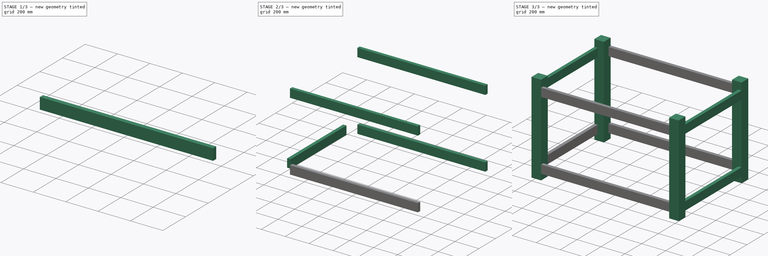
[diagram: build sequence overview — one tinted view per stage of 3, left to right]
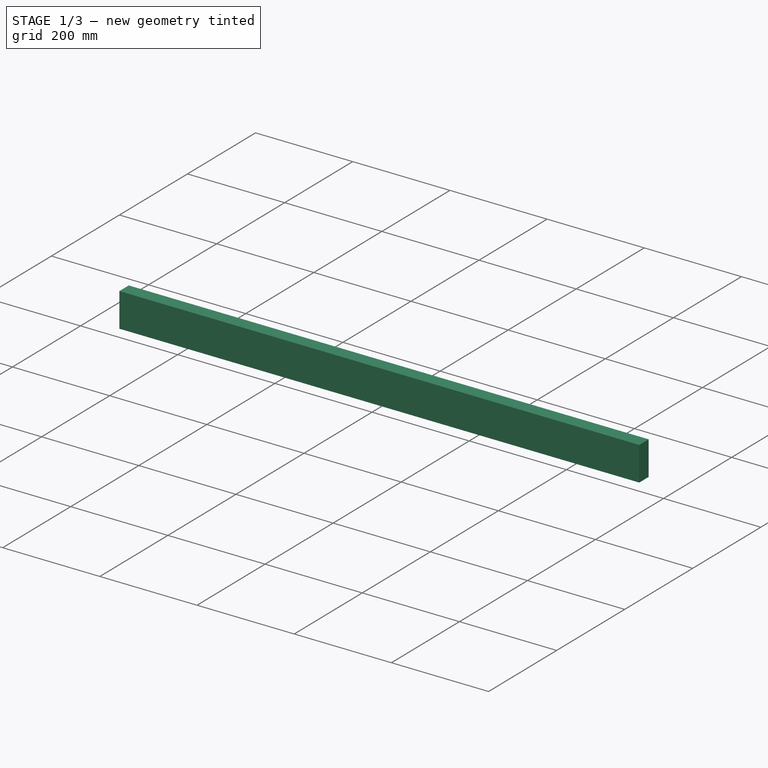
[diagram: stage 1 of 3 — iso view after this stage's code; geometry added in this stage tinted green]
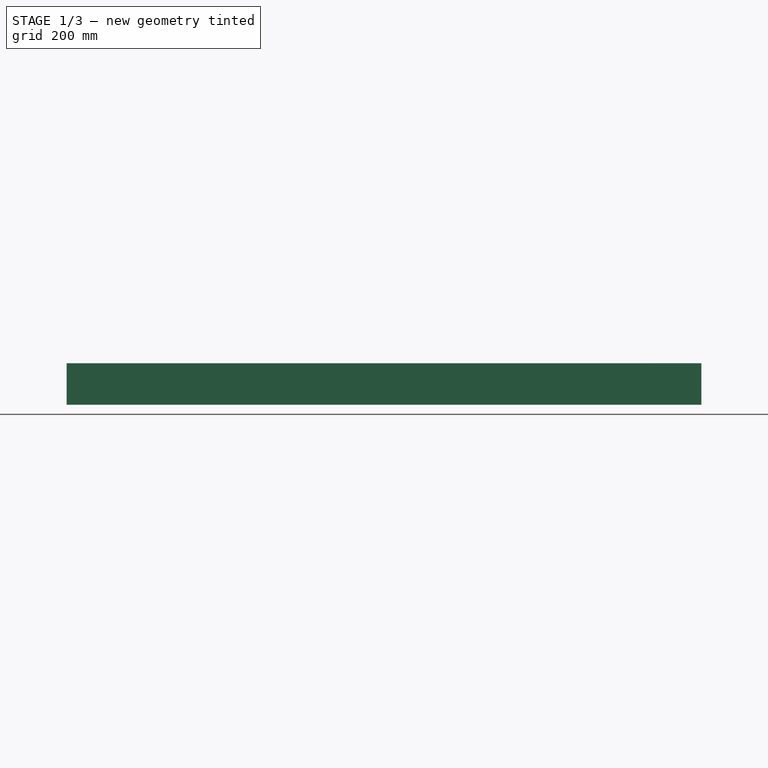
[diagram: stage 1 of 3 — front view after this stage's code; geometry added in this stage tinted green]
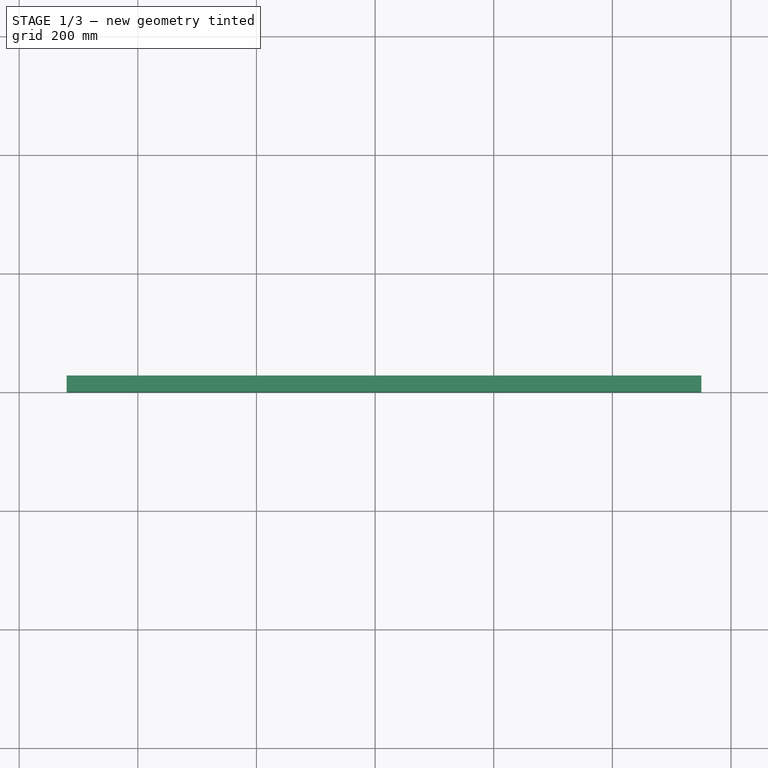
[diagram: stage 1 of 3 — top view after this stage's code; geometry added in this stage tinted green]
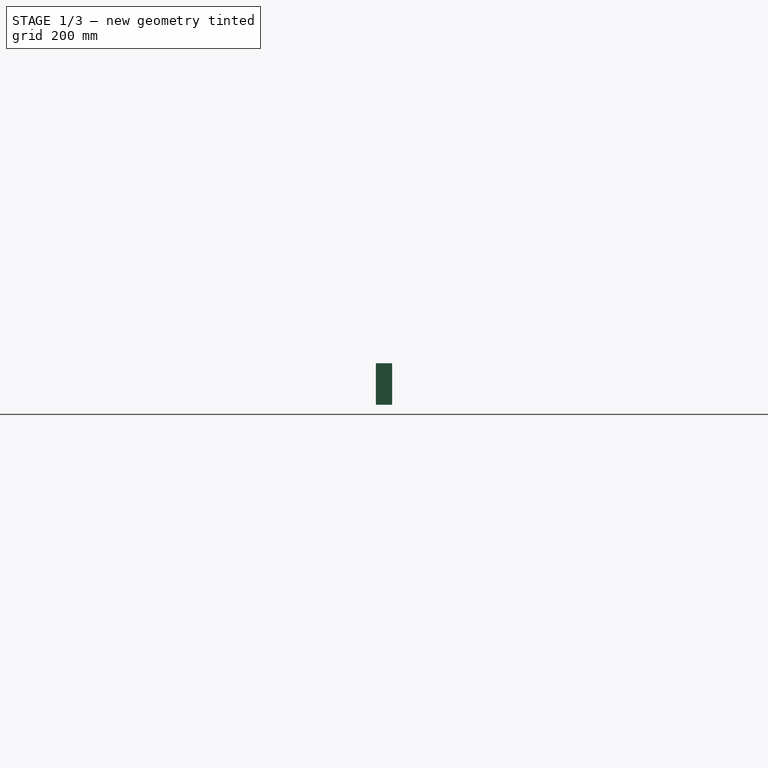
[diagram: stage 1 of 3 — right view after this stage's code; geometry added in this stage tinted green]
FCSTD DOCUMENT  (FreeCAD 0.19R)
Label: EXEMPLO-BASICO-01
License: All rights reserved
LicenseURL: http://en.wikipedia.org/wiki/All_rights_reserved
objects: Sketcher::SketchObject×3, Part::Extrusion×3, Part::FeaturePython×3, Spreadsheet::Sheet×1
note: 6 computed .brp shape members not serialized (recipe doc carries the construction recipe); baked Part::Feature solids carry a one-line shape summary decoded from their .brp

FEATURE [Spreadsheet::Sheet] Spreadsheet
  cells = B1=px; C1=py; D1=pz; E1=lx; F1=ly; G1=lz; H1=nx; I1=ny; J1=nz; K1=dx; L1=dy; M1=dz; A2=Mesa; B2(mesapx)=; C2(mesapy)=; D2(mesapz)=; E2(mesalx)=; F2(mesaly)=; G2(mesalz)=; H2(mesanx)=; I2(mesany)=; J2(mesanz)=; K2(totaldx)=1200; L2(totaldy)=750; M2(mesadz)=; A3=VigaH; B3(vigaHpx)=0; C3(vigaHpy)=0; D3(vigaHpz)=50; E3(vigaHlx)==pilardx - pilarlx; F3(vigaHly)=27.5; G3(VigaHlz)=70; H3(vigaHnx)=2; I3(vigaHny)=2; J3(vigaHnz)=2; K3(vigaHdx)=0; L3(vigaHdy)=0; M3(vigaHdz)==510 + 70; A4=VigaV; B4(vigaVpx)=0; C4(vigaVpy)=0; D4(vigaVpz)==vigaHpz; E4(vigaVlx)==vigaHly; F4(vigaVly)==pilardy - pilarlx; G4(vigaVlz)==VigaHlz; H4(vigaVnx)==vigaHnx; I4(vigaVny)==vigaHny; J4(vigaVnz)==vigaHnz; K4(vigaVdx)==vigaHdx; L4(vigaVdy)==vigaHdy; M4(vigaVdz)==vigaHdz; A5=Pilar; B5(pilarpx)=0; C5(pilarpy)=0; D5(pilarpz)=0; E5(pilarlx)=80; F5(pilarly)=80; G5(pilarlz)=760; H5(pilarnx)=2; I5(pilarny)=2; J5(pilarnz)=1; K5(pilardx)==totaldx - 50; L5(pilardy)=750; M5(pilardz)=0
FEATURE [Sketcher::SketchObject] Sketch
  expr: Constraints[9] = Spreadsheet.pilarly
  expr: Constraints[10] = Spreadsheet.pilarlx
  sketch-geometry (4):
    g0: LineSegment StartX=0 StartY=0 StartZ=0 EndX=80 EndY=0 EndZ=0
    g1: LineSegment StartX=80 StartY=0 StartZ=0 EndX=80 EndY=80 EndZ=0
    g2: LineSegment StartX=80 StartY=80 StartZ=0 EndX=0 EndY=80 EndZ=0
    g3: LineSegment StartX=0 StartY=80 StartZ=0 EndX=0 EndY=0 EndZ=0
  constraints (11):
    c: Coincident(g0,g1)
    c: Coincident(g1,g2)
    c: Coincident(g2,g3)
    c: Coincident(g3,g0)
    c: Horizontal(g0)
    c: Horizontal(g2)
    c: Vertical(g1)
    c: Vertical(g3)
    c: Coincident(g0,g-1)
    c: DistanceY(g3,g3) = 80
    c: DistanceX(g0,g0) = 80
FEATURE [Part::Extrusion] Extrude
  Base = -> Sketch
  Dir = (0,0,1)
  DirMode = 2
  FaceMakerClass = Part::FaceMakerBullseye
  LengthFwd = 760
  LengthRev = 0
  Solid = true
  Symmetric = false
  expr: .Placement.Base.x = Spreadsheet.pilarpx
  expr: .Placement.Base.y = Spreadsheet.pilarpy
  expr: .Placement.Base.z = Spreadsheet.pilarpz
  expr: LengthFwd = Spreadsheet.pilarlz
FEATURE [Sketcher::SketchObject] Sketch001
  MapMode = 5
  Placement = pos=(80,0,0) rot=(0.57735,0.57735,0.57735;2.0944rad)
  Support = -> [Extrude]
  expr: Constraints[13] = Spreadsheet.vigaHpz
  expr: Constraints[12] = Spreadsheet.VigaHlz
  expr: Constraints[11] = Spreadsheet.vigaHly
  sketch-geometry (5):
    g0: LineSegment [constr] StartX=0 StartY=0 StartZ=0 EndX=0 EndY=50 EndZ=0
    g1: LineSegment StartX=0 StartY=50 StartZ=0 EndX=27.5 EndY=50 EndZ=0
    g2: LineSegment StartX=27.5 StartY=50 StartZ=0 EndX=27.5 EndY=120 EndZ=0
    g3: LineSegment StartX=27.5 StartY=120 StartZ=0 EndX=0 EndY=120 EndZ=0
    g4: LineSegment StartX=0 StartY=120 StartZ=0 EndX=0 EndY=50 EndZ=0
  constraints (14):
    c: Coincident(g0,g-1)
    c: PointOnObject(g0,g-2)
    c: Coincident(g1,g2)
    c: Coincident(g2,g3)
    c: Coincident(g3,g4)
    c: Coincident(g4,g1)
    c: Horizontal(g1)
    c: Horizontal(g3)
    c: Vertical(g2)
    c: Vertical(g4)
    c: Coincident(g1,g0)
    c: DistanceX(g3,g3) = 27.5
    c: DistanceY(g4,g4) = 70
    c: DistanceY(g0,g0) = 50
FEATURE [Part::Extrusion] Extrude001  label="VigaH"
  Base = -> Sketch001
  Dir = (1,0,0)
  DirMode = 0
  FaceMakerClass = Part::FaceMakerBullseye
  LengthFwd = 1070
  LengthRev = 0
  Solid = true
  Symmetric = false
  expr: LengthFwd = Spreadsheet.vigaHlx
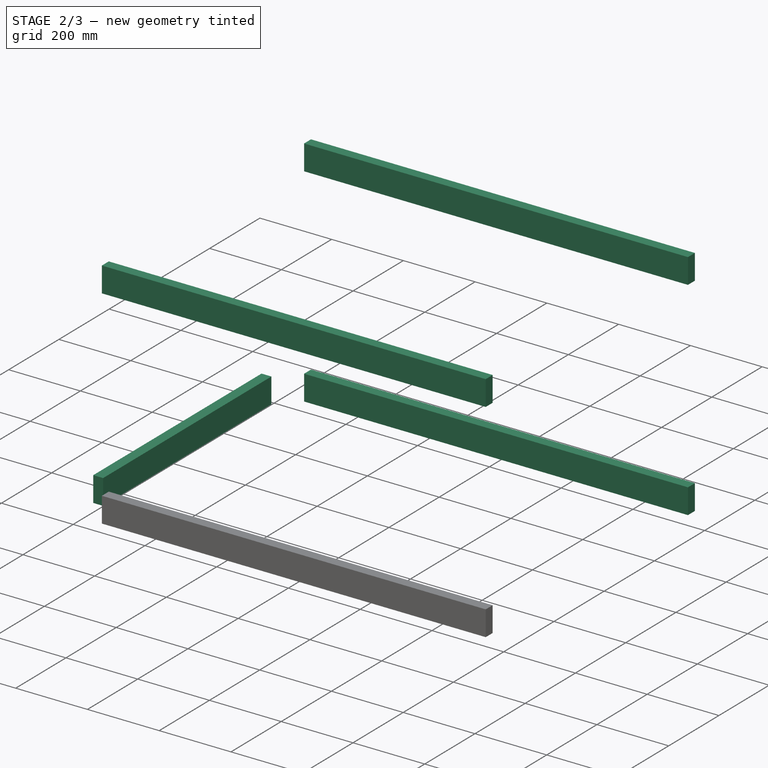
[diagram: stage 2 of 3 — iso view after this stage's code; geometry added in this stage tinted green]
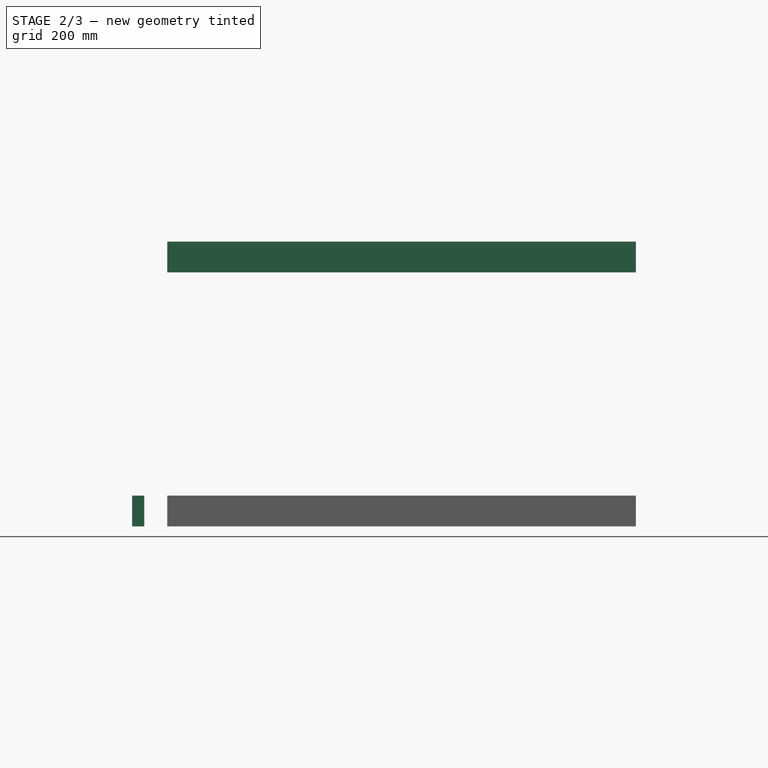
[diagram: stage 2 of 3 — front view after this stage's code; geometry added in this stage tinted green]
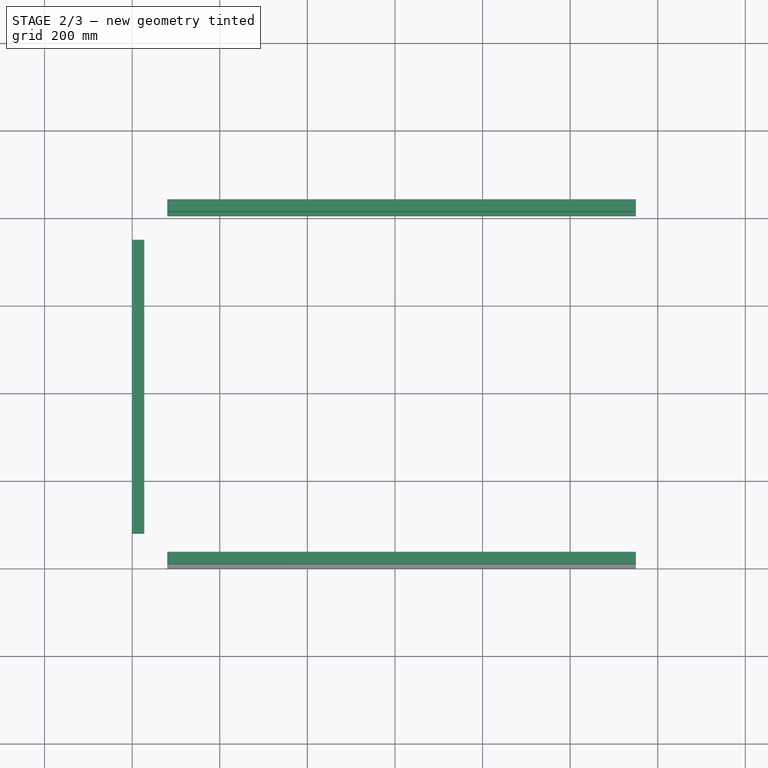
[diagram: stage 2 of 3 — top view after this stage's code; geometry added in this stage tinted green]
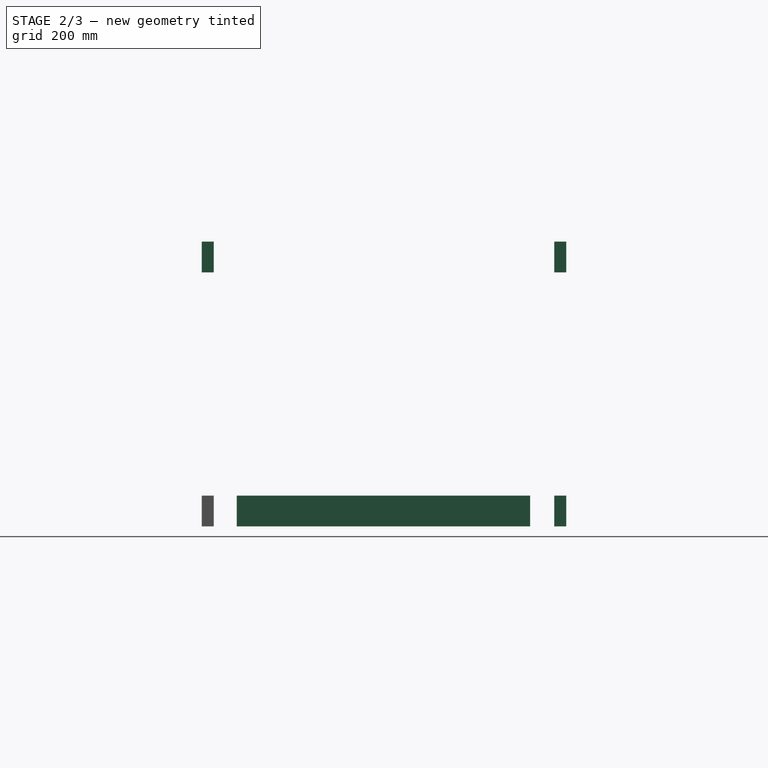
[diagram: stage 2 of 3 — right view after this stage's code; geometry added in this stage tinted green]
FEATURE [Sketcher::SketchObject] Sketch002
  MapMode = 5
  Placement = pos=(0,80,0) rot=(0,0.707107,0.707107;3.14159rad)
  Support = -> [Extrude]
  expr: Constraints[13] = Spreadsheet.vigaVpz
  expr: Constraints[12] = Spreadsheet.vigaVlz
  expr: Constraints[11] = Spreadsheet.vigaVlx
  sketch-geometry (5):
    g0: LineSegment StartX=-27.5 StartY=120 StartZ=0 EndX=0 EndY=120 EndZ=0
    g1: LineSegment StartX=0 StartY=120 StartZ=0 EndX=0 EndY=50 EndZ=0
    g2: LineSegment StartX=0 StartY=50 StartZ=0 EndX=-27.5 EndY=50 EndZ=0
    g3: LineSegment StartX=-27.5 StartY=50 StartZ=0 EndX=-27.5 EndY=120 EndZ=0
    g4: LineSegment [constr] StartX=0 StartY=50 StartZ=0 EndX=0 EndY=0 EndZ=0
  constraints (14):
    c: Coincident(g0,g1)
    c: Coincident(g1,g2)
    c: Coincident(g2,g3)
    c: Coincident(g3,g0)
    c: Horizontal(g0)
    c: Horizontal(g2)
    c: Vertical(g1)
    c: Vertical(g3)
    c: PointOnObject(g1,g-2)
    c: Coincident(g4,g1)
    c: Coincident(g4,g-1)
    c: DistanceX(g0,g0) = 27.5
    c: DistanceY(g1,g1) = 70
    c: DistanceY(g4,g4) = 50
FEATURE [Part::Extrusion] Extrude002
  Base = -> Sketch002
  Dir = (0,1,0)
  DirMode = 0
  FaceMakerClass = Part::FaceMakerBullseye
  LengthFwd = 670
  LengthRev = 0
  Solid = true
  Symmetric = false
  expr: LengthFwd = Spreadsheet.vigaVly
FEATURE [Part::FeaturePython] Array002  label="VigaH001"  # Draft array (typed FeaturePython)
  Angle = 360
  ArrayType = 0
  Axis = (0,0,1)
  Base = -> Extrude001
  Center = (0,0,0)
  Count = 4
  ExpandArray = false
  Fuse = false
  IntervalAxis = (0,0,0)
  IntervalX = (100,0,0)
  IntervalY = (0,805,0)
  IntervalZ = (0,0,580)
  NumberCircles = 3
  NumberPolar = 5
  NumberX = 1
  NumberY = 2
  NumberZ = 2
  PlacementList = 4 placements: [(0,0,0),(0,0,580),(0,805,0),(0,805,580)]
  RadialDistance = 50
  ScaleList = (4) [(1,1,1),(1,1,1),(1,1,1),(1,1,1)]
  Symmetry = 1
  TangentialDistance = 25
  expr: .IntervalY.y = Spreadsheet.vigaVly + 2 * Spreadsheet.vigaHly + Spreadsheet.pilarly
  expr: .IntervalZ.z = Spreadsheet.vigaHdz
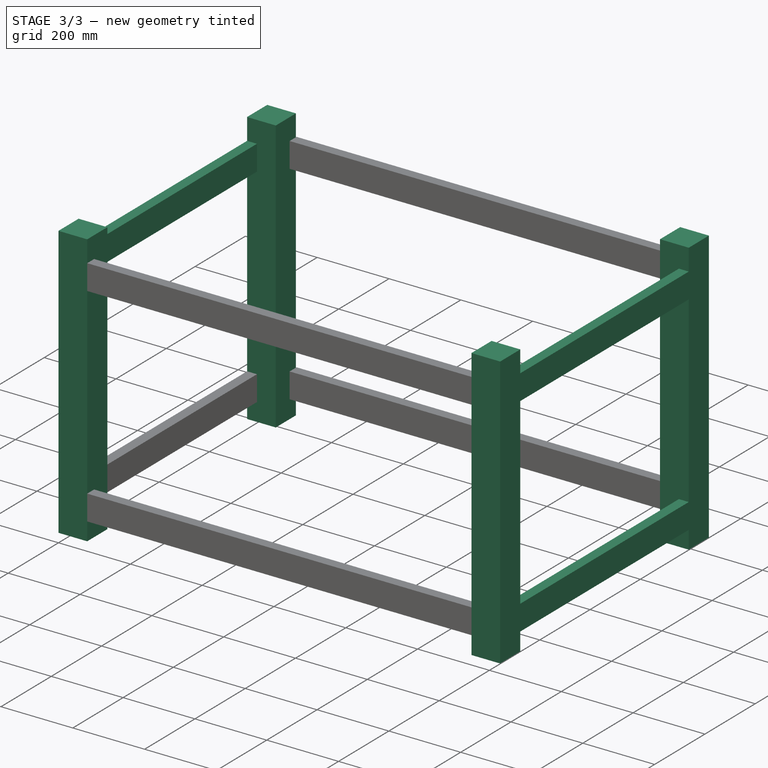
[diagram: stage 3 of 3 — iso view after this stage's code; geometry added in this stage tinted green]
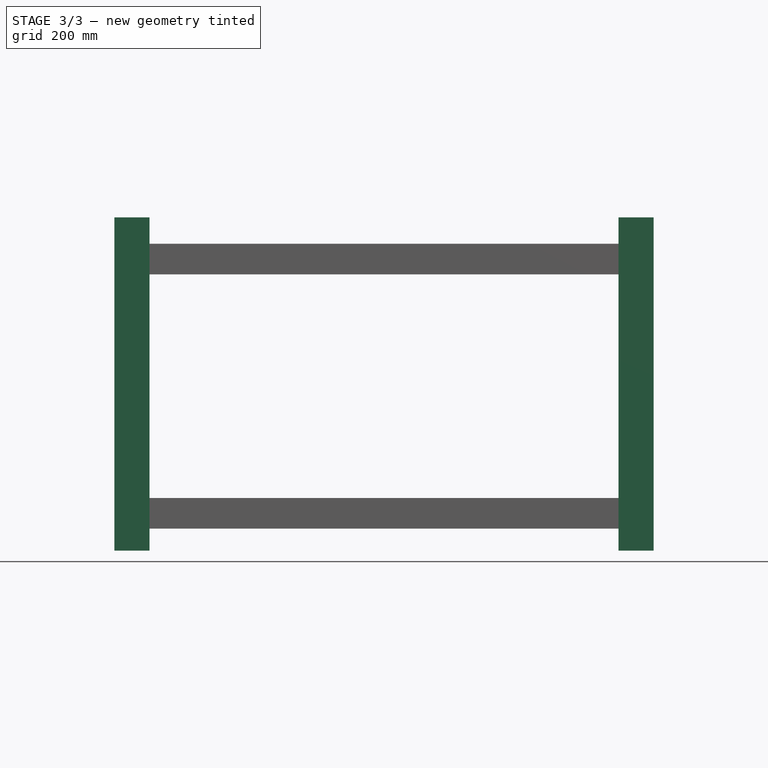
[diagram: stage 3 of 3 — front view after this stage's code; geometry added in this stage tinted green]
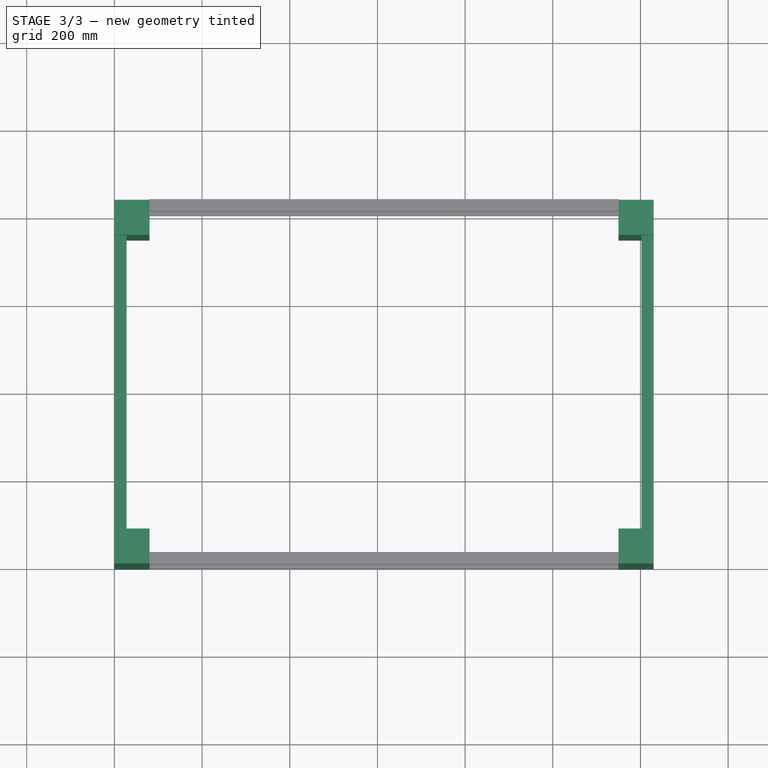
[diagram: stage 3 of 3 — top view after this stage's code; geometry added in this stage tinted green]
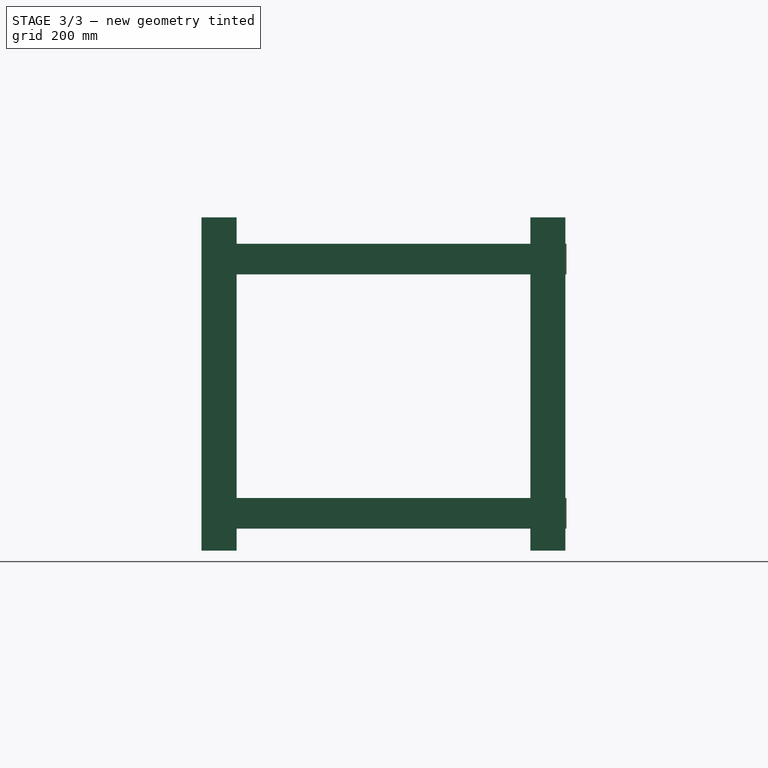
[diagram: stage 3 of 3 — right view after this stage's code; geometry added in this stage tinted green]
FEATURE [Part::FeaturePython] Array  label="Pilar"  # Draft array (typed FeaturePython)
  Angle = 360
  ArrayType = 0
  Axis = (0,0,1)
  Base = -> Extrude
  Center = (0,0,0)
  Count = 4
  ExpandArray = false
  Fuse = false
  IntervalAxis = (0,0,0)
  IntervalX = (1150,0,0)
  IntervalY = (0,750,0)
  IntervalZ = (0,0,100)
  NumberCircles = 3
  NumberPolar = 5
  NumberX = 2
  NumberY = 2
  NumberZ = 1
  PlacementList = 4 placements: [(0,0,0),(0,750,0),(1150,0,0),(1150,750,0)]
  RadialDistance = 50
  ScaleList = (4) [(1,1,1),(1,1,1),(1,1,1),(1,1,1)]
  Symmetry = 1
  TangentialDistance = 25
  expr: .IntervalX.x = Spreadsheet.pilardx
  expr: .IntervalY.y = Spreadsheet.pilardy
  expr: NumberX = Spreadsheet.pilarnx
  expr: NumberY = Spreadsheet.pilarny
  expr: NumberZ = Spreadsheet.pilarnz
FEATURE [Part::FeaturePython] Array001  label="VigaV"  # Draft array (typed FeaturePython)
  Angle = 360
  ArrayType = 0
  Axis = (0,0,1)
  Base = -> Extrude002
  Center = (0,0,0)
  Count = 4
  ExpandArray = false
  Fuse = false
  IntervalAxis = (0,0,0)
  IntervalX = (1202.5,0,0)
  IntervalY = (0,100,0)
  IntervalZ = (0,0,580)
  NumberCircles = 3
  NumberPolar = 5
  NumberX = 2
  NumberY = 1
  NumberZ = 2
  PlacementList = 4 placements: [(0,0,0),(0,0,580),(1202.5,0,0),(1202.5,0,580)]
  RadialDistance = 50
  ScaleList = (4) [(1,1,1),(1,1,1),(1,1,1),(1,1,1)]
  Symmetry = 1
  TangentialDistance = 25
  expr: .IntervalZ.z = Spreadsheet.vigaVdz
  expr: .IntervalX.x = Spreadsheet.vigaHlx + 2 * Spreadsheet.pilarlx - Spreadsheet.vigaVlx
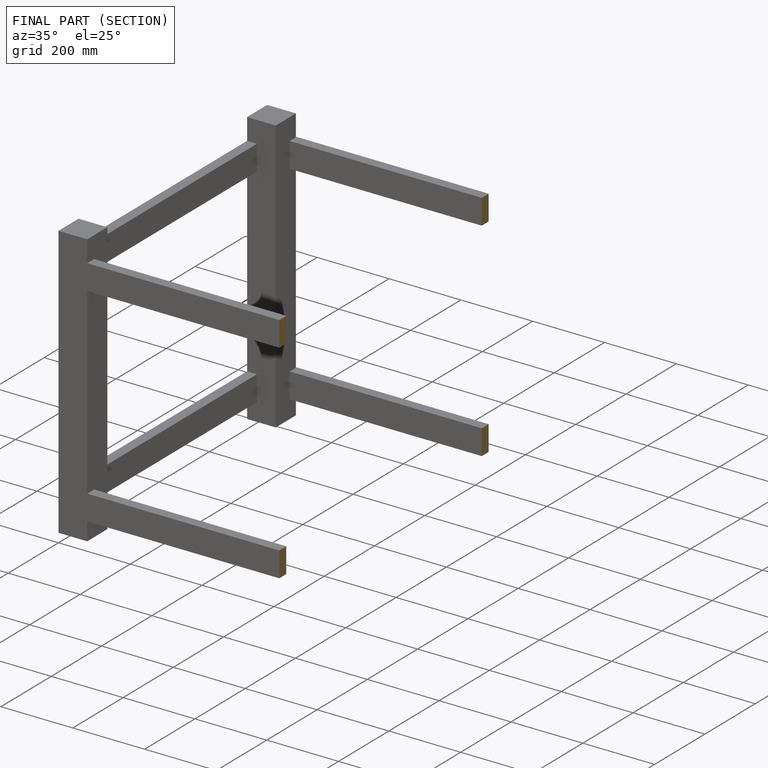
[diagram: finished part — half-section view (interior)]
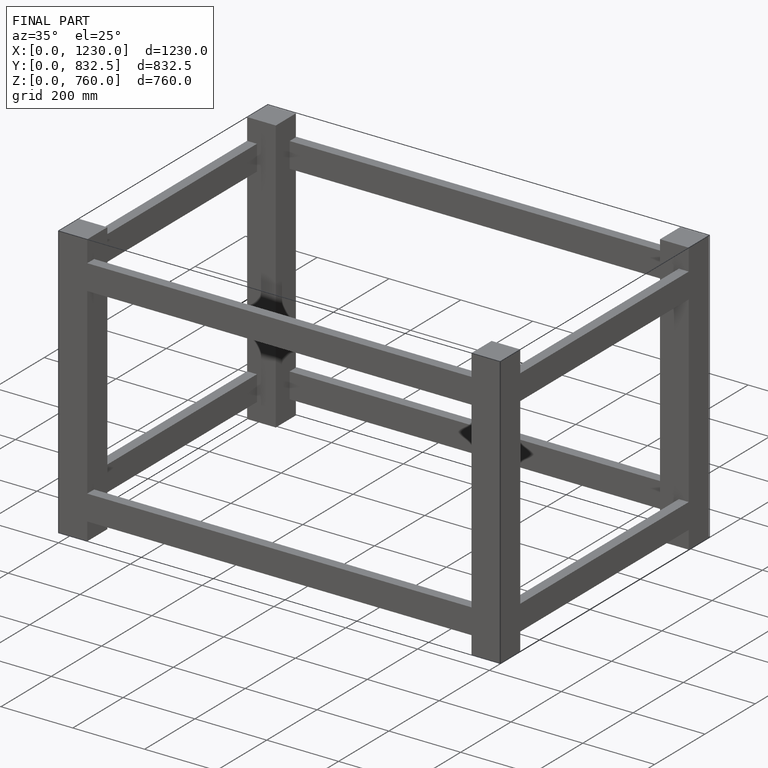
[diagram: finished part — iso view with bounding-box wireframe]
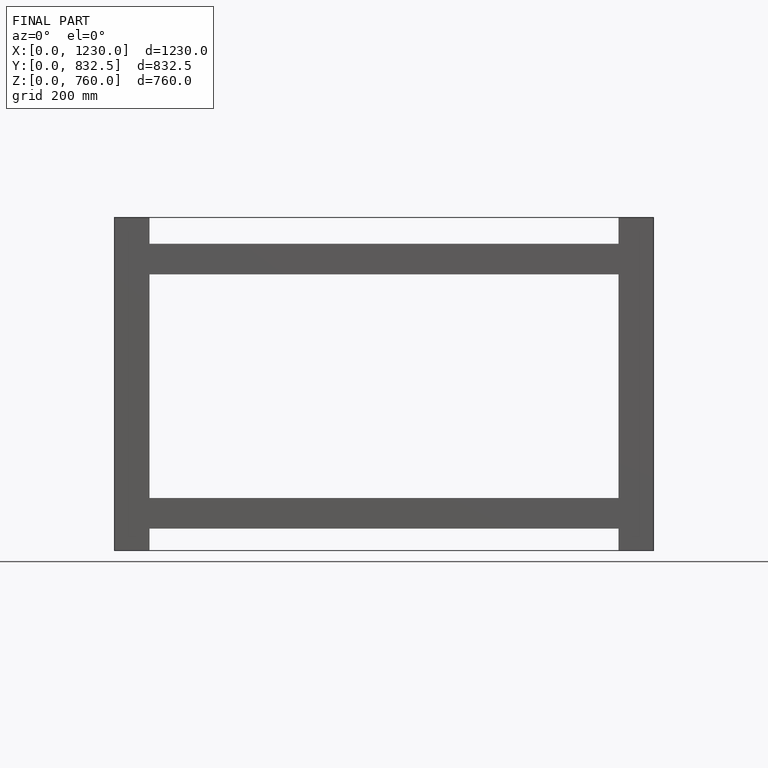
[diagram: finished part — front view with bounding-box wireframe]
